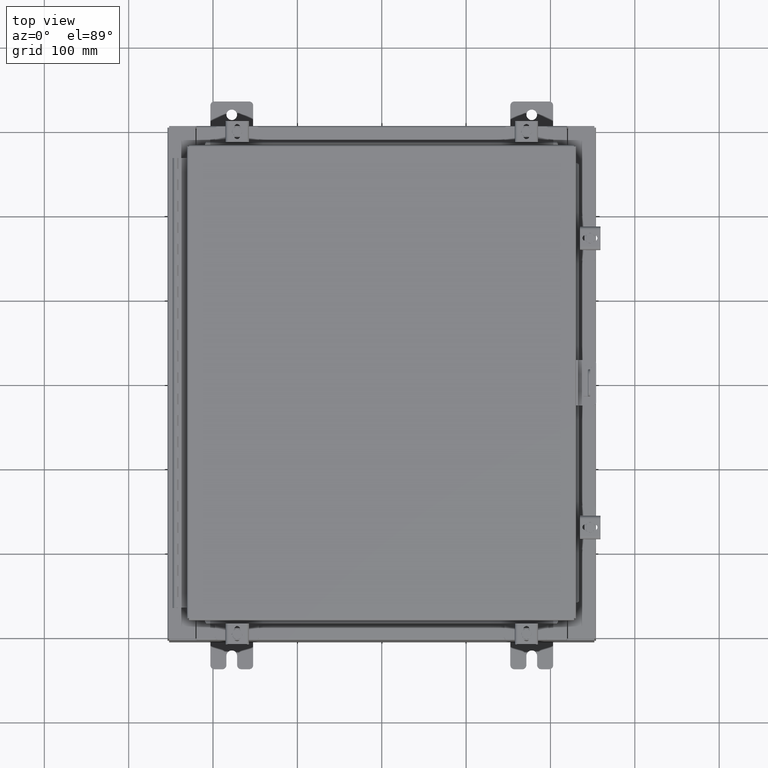
[diagram: clean part render]
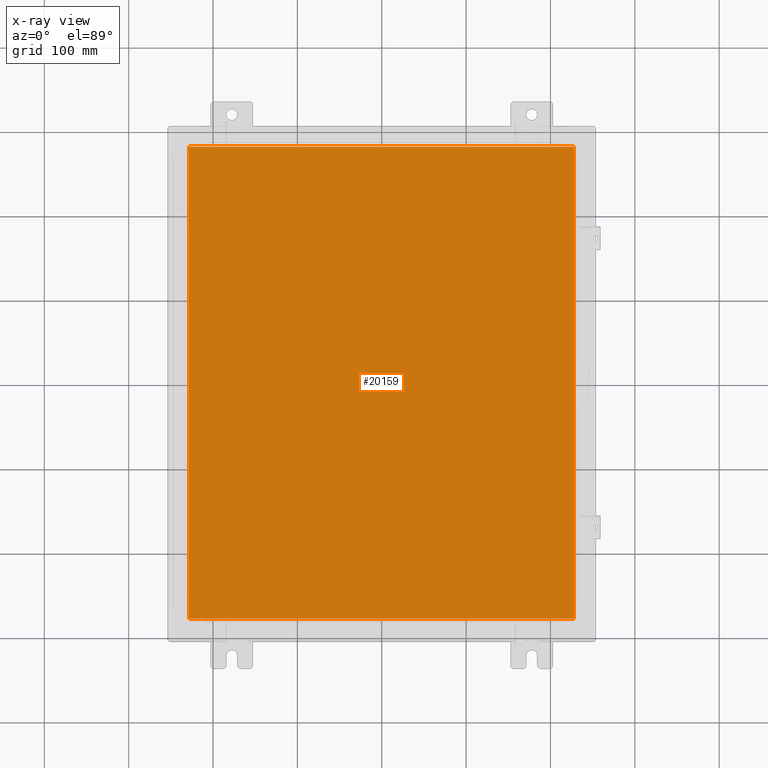
[diagram: x-ray — body ghosted, one internal face saturated and labeled with its STEP entity id]
A machine part, top view, then the same camera in x-ray: the body is ghosted and one INTERNAL B-rep face — a face not visible from any outside direction — is saturated and labeled: STEP entity #20159.
In plain terms, the highlighted planar face has unit normal (0, 0, -1).
Its self-contained STEP definition (entity closure, byte-faithful):
#1415 = CARTESIAN_POINT ( 'NONE',  ( -8.990299999999997700, -11.00630000000000100, -0.07470000000000000300 ) ) ;
#2138 = CARTESIAN_POINT ( 'NONE',  ( -8.990300000000001300, -11.00630000000000100, -0.07469999999999910000 ) ) ;
#2937 = VECTOR ( 'NONE', #10928, 39.37007874015748100 ) ;
#3462 = EDGE_CURVE ( 'NONE', #27377, #5824, #22716, .T. ) ;
#4202 = VERTEX_POINT ( 'NONE', #1415 ) ;
#4448 = ORIENTED_EDGE ( 'NONE', *, *, #31083, .F. ) ;
#5802 = EDGE_CURVE ( 'NONE', #4202, #20241, #14480, .T. ) ;
#5824 = VERTEX_POINT ( 'NONE', #24615 ) ;
#5881 = DIRECTION ( 'NONE',  ( 0.0000000000000000000, 1.000000000000000000, 0.0000000000000000000 ) ) ;
#8159 = EDGE_CURVE ( 'NONE', #5824, #4202, #22823, .T. ) ;
#8424 = CARTESIAN_POINT ( 'NONE',  ( -8.990299999999999500, 11.00630000000000100, -0.07470000000000019700 ) ) ;
#8678 = ORIENTED_EDGE ( 'NONE', *, *, #3462, .F. ) ;
#8917 = ORIENTED_EDGE ( 'NONE', *, *, #5802, .F. ) ;
#8990 = DIRECTION ( 'NONE',  ( -1.000000000000000000, -0.0000000000000000000, -0.0000000000000000000 ) ) ;
#9419 = CARTESIAN_POINT ( 'NONE',  ( 8.990299999999999500, 11.00630000000000000, -0.07470000000000019700 ) ) ;
#10819 = EDGE_LOOP ( 'NONE', ( #4448, #8917, #27956, #8678 ) ) ;
#10928 = DIRECTION ( 'NONE',  ( 0.0000000000000000000, -1.000000000000000000, 0.0000000000000000000 ) ) ;
#11857 = PLANE ( 'NONE',  #24362 ) ;
#14336 = DIRECTION ( 'NONE',  ( 0.0000000000000000000, 0.0000000000000000000, -1.000000000000000000 ) ) ;
#14480 = LINE ( 'NONE', #2138, #16022 ) ;
#16022 = VECTOR ( 'NONE', #22095, 39.37007874015748100 ) ;
#16107 = VECTOR ( 'NONE', #8990, 39.37007874015748100 ) ;
#17856 = VECTOR ( 'NONE', #5881, 39.37007874015748100 ) ;
#20159 = ADVANCED_FACE ( 'NONE', ( #22407 ), #11857, .T. ) ;
#20241 = VERTEX_POINT ( 'NONE', #27075 ) ;
#22095 = DIRECTION ( 'NONE',  ( 1.000000000000000000, -0.0000000000000000000, -0.0000000000000000000 ) ) ;
#22407 = FACE_OUTER_BOUND ( 'NONE', #10819, .T. ) ;
#22716 = LINE ( 'NONE', #9419, #16107 ) ;
#22823 = LINE ( 'NONE', #8424, #2937 ) ;
#23275 = CARTESIAN_POINT ( 'NONE',  ( 8.990299999999997700, -11.00630000000000000, -0.07470000000000019700 ) ) ;
#24362 = AXIS2_PLACEMENT_3D ( 'NONE', #29296, #14336, #31829 ) ;
#24615 = CARTESIAN_POINT ( 'NONE',  ( -8.990299999999999500, 11.00630000000000000, -0.07470000000000000300 ) ) ;
#27075 = CARTESIAN_POINT ( 'NONE',  ( 8.990299999999997700, -11.00630000000000000, -0.07470000000000000300 ) ) ;
#27377 = VERTEX_POINT ( 'NONE', #29415 ) ;
#27956 = ORIENTED_EDGE ( 'NONE', *, *, #8159, .F. ) ;
#29296 = CARTESIAN_POINT ( 'NONE',  ( 0.0000000000000000000, 0.0000000000000000000, -0.07470000000000000300 ) ) ;
#29415 = CARTESIAN_POINT ( 'NONE',  ( 8.990299999999997700, 11.00630000000000000, -0.07470000000000000300 ) ) ;
#31083 = EDGE_CURVE ( 'NONE', #20241, #27377, #31989, .T. ) ;
#31829 = DIRECTION ( 'NONE',  ( -1.000000000000000000, 0.0000000000000000000, -0.0000000000000000000 ) ) ;
#31989 = LINE ( 'NONE', #23275, #17856 ) ;